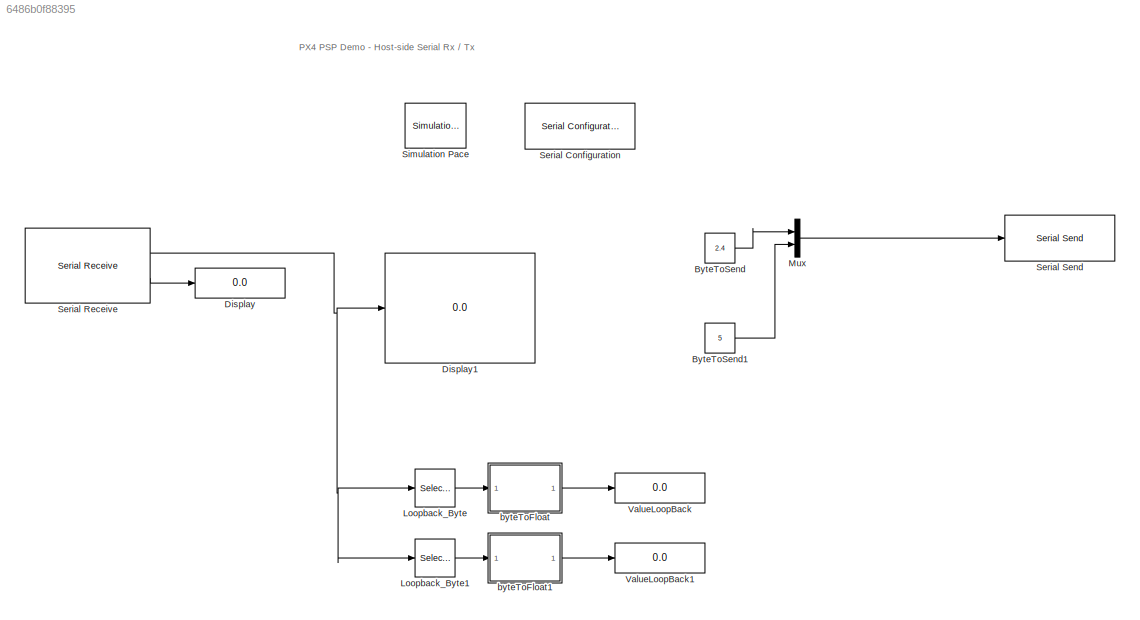
MODEL slx_6486b0f88395
KIND model
CONFIG AbsTol = auto
CONFIG EnableMultiTasking = on
CONFIG FixedStep = auto
CONFIG MaxStep = auto
CONFIG MinStep = auto
CONFIG RelTol = 1e-3
CONFIG SampleTimeConstraint = Unconstrained
CONFIG Solver = VariableStepAuto
CONFIG SolverName = VariableStepAuto
CONFIG StartTime = 0.0
CONFIG StopTime = inf
BLOCK [Constant] ByteToSend
  OutDataTypeStr = uint8
  SampleTime = 0.005
  Value = 2.4
  VectorParams1D = off
BLOCK [Constant] ByteToSend1
  OutDataTypeStr = uint8
  SampleTime = 0.005
  Value = 5
  VectorParams1D = off
BLOCK [Display] Display
  Decimation = 1
  Ports = [1]
BLOCK [Display] Display1
  Decimation = 1
  Ports = [1]
BLOCK [Selector] Loopback_Byte
  IndexOptions = Index vector (dialog)
  Indices = 1:4
  InputPortWidth = 8
  OutputSizes = 1
  Ports = [1, 1]
BLOCK [Selector] Loopback_Byte1
  IndexOptions = Index vector (dialog)
  Indices = 5:8
  InputPortWidth = 8
  OutputSizes = 1
  Ports = [1, 1]
BLOCK [Mux] Mux
  DisplayOption = bar
  Inputs = 2
  Ports = [2, 1]
BLOCK [Reference] Serial Configuration  REF=instrumentlib/Serial Configuration
  Ports = []
  Priority = -200000
  SourceBlock = instrumentlib/Serial Configuration
  SourceType = Serial Configuration
BLOCK [Reference] Serial Receive  REF=instrumentlib/Serial Receive
  Ports = [0, 2]
  SourceBlock = instrumentlib/Serial Receive
  SourceType = Serial Receive
BLOCK [Reference] Serial Send  REF=instrumentlib/Serial Send
  Ports = [1]
  SourceBlock = instrumentlib/Serial Send
  SourceType = Serial Send
BLOCK [Reference] Simulation Pace  REF=aerolibanimutils/Simulation Pace
  AttributesFormatString = %<SleepMode>\n%<SimulationPace> sec/sec
  Ports = []
  SourceBlock = aerolibanimutils/Simulation Pace
  SourceType = Simulation Pace
BLOCK [Display] ValueLoopBack
  Decimation = 1
  Ports = [1]
BLOCK [Display] ValueLoopBack1
  Decimation = 1
  Ports = [1]
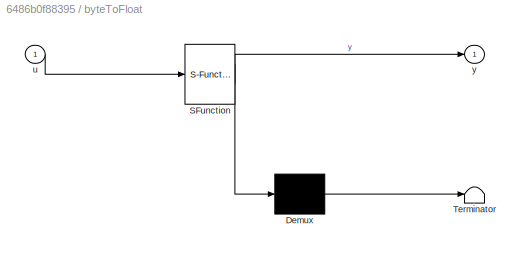
BLOCK [SubSystem] byteToFloat
  ErrorFcn = Stateflow.Translate.translate
  PermitHierarchicalResolution = ExplicitOnly
  Ports = [1, 1]
  RequestExecContextInheritance = off
  SFBlockType = MATLAB Function
  TreatAsAtomicUnit = on
  Variant = off
BLOCK [Demux] byteToFloat/ Demux 
  Outputs = 1
  Ports = [1, 1]
BLOCK [S-Function] byteToFloat/ SFunction 
  EnableBusSupport = on
  FunctionName = sf_sfun
  PortCounts = [1 2]
  Ports = [1, 2]
  SFcnIsStateOwnerBlock = off
  SFunctionDeploymentMode = off
  Tag = Stateflow S-Function px4demo_HostSerial_TxRx20190112 7
BLOCK [Terminator] byteToFloat/ Terminator 
BLOCK [Inport] byteToFloat/u
  IconDisplay = Port number
BLOCK [Outport] byteToFloat/y
  IconDisplay = Port number
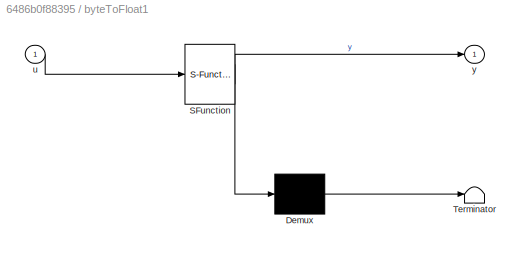
BLOCK [SubSystem] byteToFloat1
  ErrorFcn = Stateflow.Translate.translate
  PermitHierarchicalResolution = ExplicitOnly
  Ports = [1, 1]
  RequestExecContextInheritance = off
  SFBlockType = MATLAB Function
  TreatAsAtomicUnit = on
  Variant = off
BLOCK [Demux] byteToFloat1/ Demux 
  Outputs = 1
  Ports = [1, 1]
BLOCK [S-Function] byteToFloat1/ SFunction 
  EnableBusSupport = on
  FunctionName = sf_sfun
  PortCounts = [1 2]
  Ports = [1, 2]
  SFcnIsStateOwnerBlock = off
  SFunctionDeploymentMode = off
  Tag = Stateflow S-Function px4demo_HostSerial_TxRx20190112 1
BLOCK [Terminator] byteToFloat1/ Terminator 
BLOCK [Inport] byteToFloat1/u
  IconDisplay = Port number
BLOCK [Outport] byteToFloat1/y
  IconDisplay = Port number
ANNOTATION (root): PX4 PSP Demo - Host-side Serial Rx / Tx
LINE ByteToSend1:1 -> Mux:2
LINE ByteToSend:1 -> Mux:1
LINE Loopback_Byte1:1 -> byteToFloat1:1
LINE Loopback_Byte:1 -> byteToFloat:1
LINE Mux:1 -> Serial Send:1
NET Serial Receive:1 -> Display1:1, Loopback_Byte1:1, Loopback_Byte:1
LINE Serial Receive:2 -> Display:1
LINE byteToFloat1:1 -> ValueLoopBack1:1
LINE byteToFloat:1 -> ValueLoopBack:1
note: NET lines group one-source signal fan-out (src -> all destinations, sorted); 1:1 wires keep LINE
CHART byteToFloat1 states=1 transitions=1
  STATE_LABEL 'eML_blk_kernel()'
  STATE_LABEL "SCRIPT:\nfunction y = fcn(u)\n%#codegen\ny = single(0);\ny = single(typecast(uint8(u),'single'));\n% y = u;"
CHART byteToFloat states=1 transitions=1
  STATE_LABEL 'eML_blk_kernel()'
  STATE_LABEL "SCRIPT:\nfunction y = fcn(u)\n%#codegen\ny = single(0);\ny = single(typecast(uint8(u),'single'));\n% y = u;"
